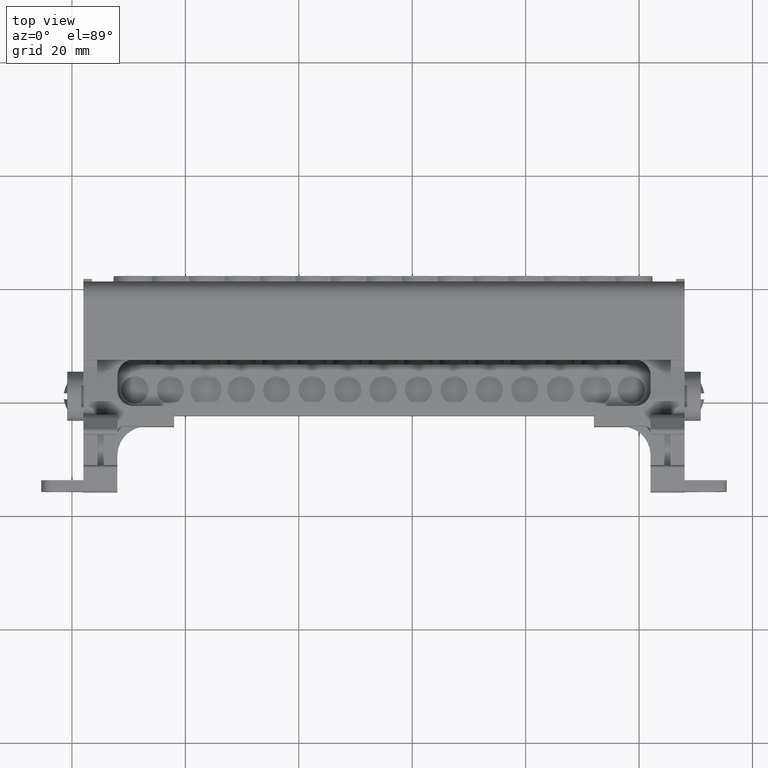
[diagram: clean part render]
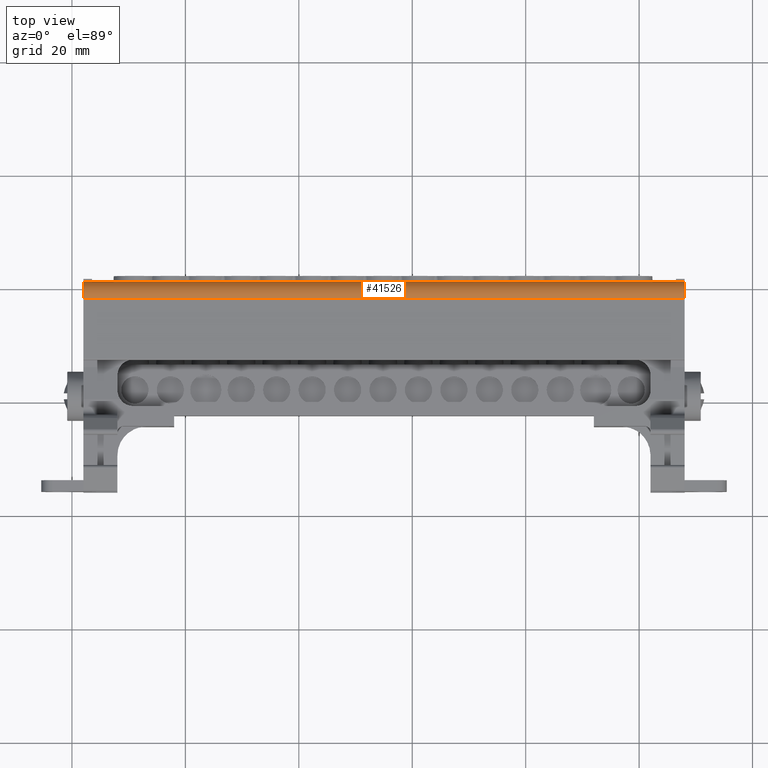
[diagram: same view with one face highlighted and labeled with its STEP entity id]
A machine part, top view. The second image highlights one B-rep face of the part: STEP entity #41526.
In plain terms, the highlighted cylindrical surface (edge-blend (fillet) strip) has radius 3.0101 mm, axis along (1, 0, -0).
Its self-contained STEP definition (entity closure, byte-faithful):
#207 = VECTOR ( 'NONE', #22352, 1000.000000000000000 ) ;
#266 = CIRCLE ( 'NONE', #297, 3.010083036540309300 ) ;
#297 = AXIS2_PLACEMENT_3D ( 'NONE', #21646, #21667, #21632 ) ;
#368 = CIRCLE ( 'NONE', #417, 3.010083036540323100 ) ;
#417 = AXIS2_PLACEMENT_3D ( 'NONE', #13406, #13380, #13385 ) ;
#459 = VECTOR ( 'NONE', #13599, 1000.000000000000000 ) ;
#7714 = VERTEX_POINT ( 'NONE', #20103 ) ;
#7725 = VERTEX_POINT ( 'NONE', #20102 ) ;
#9331 = VERTEX_POINT ( 'NONE', #16130 ) ;
#10973 = EDGE_LOOP ( 'NONE', ( #21434, #21468, #21480, #21457 ) ) ;
#11657 = AXIS2_PLACEMENT_3D ( 'NONE', #38208, #38212, #38210 ) ;
#13380 = DIRECTION ( 'NONE',  ( -1.000000000000000000, -1.094139335893506200E-014, 1.161754202389524500E-014 ) ) ;
#13385 = DIRECTION ( 'NONE',  ( -1.844173418387164300E-014, 4.610433545967910600E-015, -1.000000000000000000 ) ) ;
#13406 = CARTESIAN_POINT ( 'NONE',  ( -297.9752350520589100, -101.8857587043915100, 145.1535837252634200 ) ) ;
#13575 = CARTESIAN_POINT ( 'NONE',  ( -373.4252350520591800, -101.8332255118289100, 148.1632083115803500 ) ) ;
#13594 = LINE ( 'NONE', #13575, #459 ) ;
#13599 = DIRECTION ( 'NONE',  ( 1.000000000000000000, 1.094038394468816000E-014, -1.161753797936259400E-014 ) ) ;
#16130 = CARTESIAN_POINT ( 'NONE',  ( -191.9827637199368600, -101.8332255118269200, 148.1632083115782200 ) ) ;
#19612 = VERTEX_POINT ( 'NONE', #23363 ) ;
#20102 = CARTESIAN_POINT ( 'NONE',  ( -191.9827637199368000, -98.87567566784997600, 145.1535837252622800 ) ) ;
#20103 = CARTESIAN_POINT ( 'NONE',  ( -297.9752350520589100, -98.87567566785114100, 145.1535837252635000 ) ) ;
#21434 = ORIENTED_EDGE ( 'NONE', *, *, #24201, .T. ) ;
#21457 = ORIENTED_EDGE ( 'NONE', *, *, #24163, .F. ) ;
#21468 = ORIENTED_EDGE ( 'NONE', *, *, #24117, .T. ) ;
#21480 = ORIENTED_EDGE ( 'NONE', *, *, #24032, .F. ) ;
#21632 = DIRECTION ( 'NONE',  ( -1.844173418387172500E-014, -1.000000000000000000, 0.0000000000000000000 ) ) ;
#21646 = CARTESIAN_POINT ( 'NONE',  ( -191.9827637199368600, -101.8857587043903400, 145.1535837252621900 ) ) ;
#21667 = DIRECTION ( 'NONE',  ( -1.000000000000000000, 2.114566672224292200E-014, -2.348391420541409500E-015 ) ) ;
#22352 = DIRECTION ( 'NONE',  ( 1.000000000000000000, 1.094038394468816000E-014, -1.161753797936259400E-014 ) ) ;
#22380 = CARTESIAN_POINT ( 'NONE',  ( -373.4252350520591800, -98.87567566785196500, 145.1535837252643800 ) ) ;
#22394 = LINE ( 'NONE', #22380, #207 ) ;
#23363 = CARTESIAN_POINT ( 'NONE',  ( -297.9752350520588500, -101.8332255118280900, 148.1632083115794400 ) ) ;
#24032 = EDGE_CURVE ( 'NONE', #7714, #7725, #22394, .T. ) ;
#24117 = EDGE_CURVE ( 'NONE', #9331, #7725, #266, .T. ) ;
#24163 = EDGE_CURVE ( 'NONE', #19612, #7714, #368, .T. ) ;
#24201 = EDGE_CURVE ( 'NONE', #19612, #9331, #13594, .T. ) ;
#38208 = CARTESIAN_POINT ( 'NONE',  ( -373.4252350520591800, -101.8857587043923300, 145.1535837252643000 ) ) ;
#38210 = DIRECTION ( 'NONE',  ( 1.844173418387164300E-014, -4.610433545967910300E-014, 1.000000000000000000 ) ) ;
#38212 = DIRECTION ( 'NONE',  ( 1.000000000000000000, 1.094038394468816000E-014, -1.161753797936259400E-014 ) ) ;
#38232 = CYLINDRICAL_SURFACE ( 'NONE', #11657, 3.010083036540323100 ) ;
#38312 = FACE_OUTER_BOUND ( 'NONE', #10973, .T. ) ;
#41526 = ADVANCED_FACE ( 'NONE', ( #38312 ), #38232, .T. ) ;